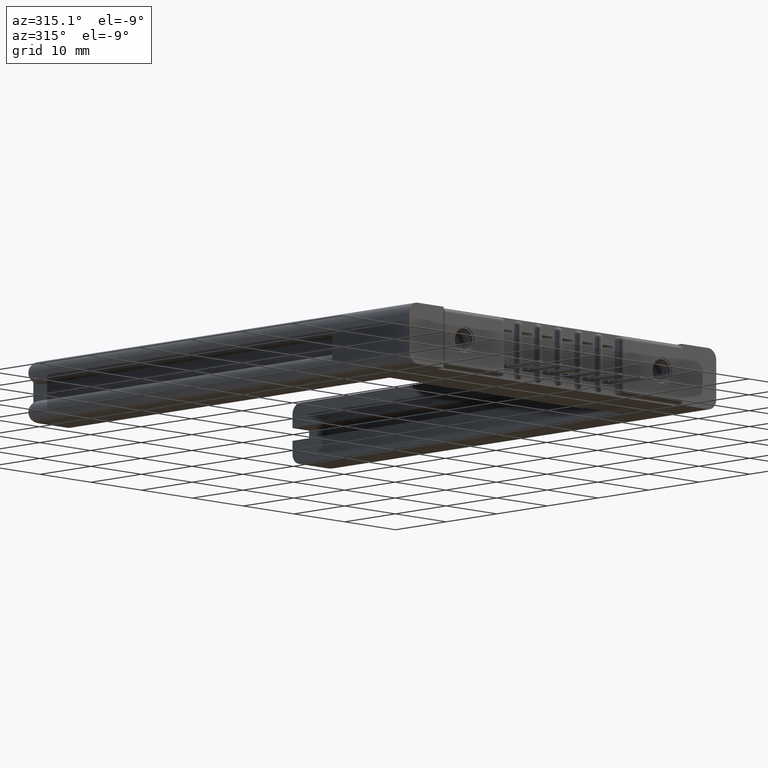
[diagram: clean part render]
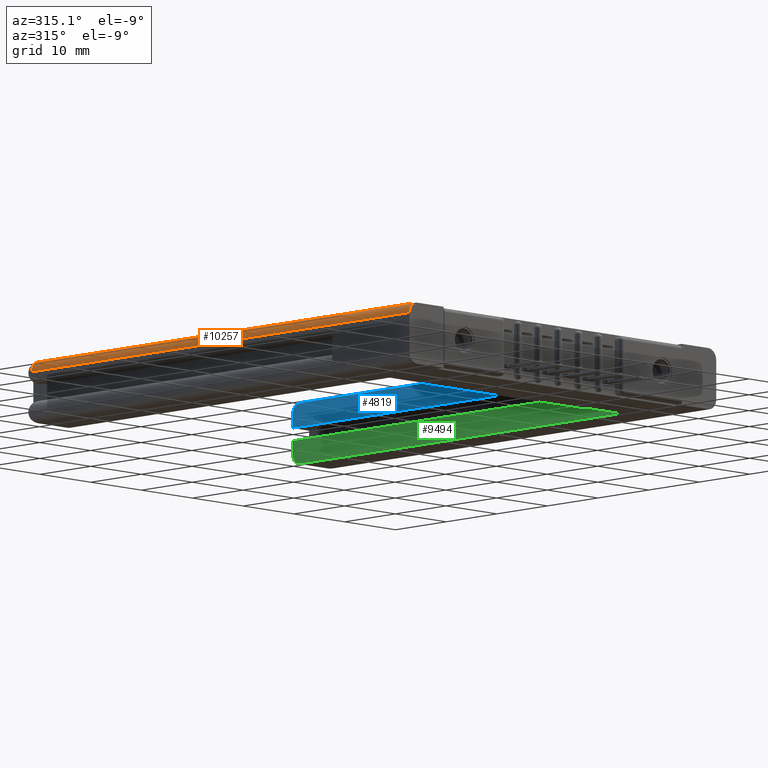
[diagram: same view with three faces highlighted in distinct colors, each labeled with its STEP entity id]
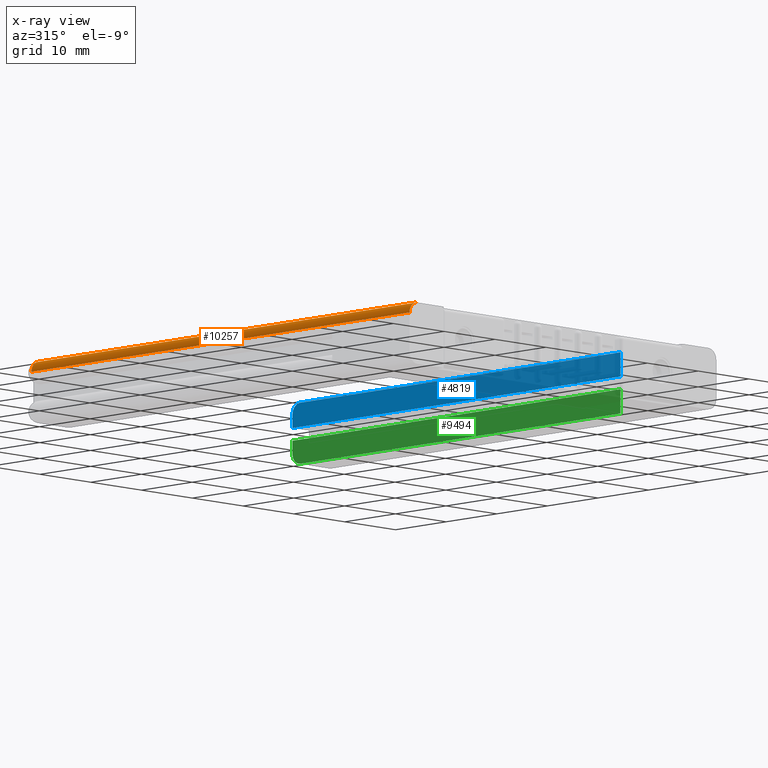
[diagram: x-ray of the same camera — body ghosted, the three highlighted faces saturated]
A machine part, auxiliary view with three faces highlighted in distinct colors.
The next image is the same camera in x-ray (body ghosted, the three faces saturated) — at least one of them is partly hidden behind the body in this view.
Their STEP definitions:

[orange] entity #10257 — the highlighted cylindrical surface (edge-blend (fillet) strip) has radius 1.5621 mm, axis along (0, 1, -0).
#352 = ORIENTED_EDGE ( 'NONE', *, *, #11031, .F. ) ;
#608 = DIRECTION ( 'NONE',  ( 0.0000000000000000000, -2.334284690065025200E-016, 1.000000000000000000 ) ) ;
#714 = DIRECTION ( 'NONE',  ( 0.0000000000000000000, 0.0000000000000000000, 1.000000000000000000 ) ) ;
#732 = ORIENTED_EDGE ( 'NONE', *, *, #4155, .F. ) ;
#795 = VECTOR ( 'NONE', #6135, 39.37007874015748100 ) ;
#1024 = LINE ( 'NONE', #11329, #7639 ) ;
#1482 = VERTEX_POINT ( 'NONE', #1958 ) ;
#1725 = DIRECTION ( 'NONE',  ( 7.120336040201873200E-016, 1.000000000000000000, -2.334284690065040000E-016 ) ) ;
#1732 = ORIENTED_EDGE ( 'NONE', *, *, #8716, .T. ) ;
#1958 = CARTESIAN_POINT ( 'NONE',  ( 2.032419574938677500E-006, 2.940000000000007100, -0.06149998347626495200 ) ) ;
#2444 = DIRECTION ( 'NONE',  ( 7.120336040201873200E-016, 1.000000000000000000, -2.334284690065040000E-016 ) ) ;
#2512 = CIRCLE ( 'NONE', #4119, 0.06150000000000035300 ) ;
#2971 = LINE ( 'NONE', #11797, #795 ) ;
#3154 = EDGE_LOOP ( 'NONE', ( #352, #5705, #1732, #11589, #732 ) ) ;
#3835 = CYLINDRICAL_SURFACE ( 'NONE', #5060, 0.06150000000000035300 ) ;
#4119 = AXIS2_PLACEMENT_3D ( 'NONE', #9264, #10298, #10254 ) ;
#4155 = EDGE_CURVE ( 'NONE', #4884, #10256, #2512, .T. ) ;
#4260 = EDGE_CURVE ( 'NONE', #6934, #1482, #8370, .T. ) ;
#4464 = CARTESIAN_POINT ( 'NONE',  ( 0.06150000000000370400, 2.940000000000007100, -0.06150000000000127600 ) ) ;
#4884 = VERTEX_POINT ( 'NONE', #5436 ) ;
#5060 = AXIS2_PLACEMENT_3D ( 'NONE', #9125, #2444, #608 ) ;
#5436 = CARTESIAN_POINT ( 'NONE',  ( 0.06149999999999987400, 4.161799677847901200E-017, 0.0000000000000000000 ) ) ;
#5666 = DIRECTION ( 'NONE',  ( -7.120336040201873200E-016, -1.000000000000000000, 2.334284690065040000E-016 ) ) ;
#5705 = ORIENTED_EDGE ( 'NONE', *, *, #4260, .T. ) ;
#6135 = DIRECTION ( 'NONE',  ( -7.120336040201873200E-016, -1.000000000000000000, 2.334284690065040000E-016 ) ) ;
#6934 = VERTEX_POINT ( 'NONE', #9310 ) ;
#7376 = EDGE_CURVE ( 'NONE', #10256, #11032, #11126, .T. ) ;
#7439 = CARTESIAN_POINT ( 'NONE',  ( 3.551402391763542400E-015, 3.000000000000006700, -0.06150000000000131100 ) ) ;
#7639 = VECTOR ( 'NONE', #5666, 39.37007874015748100 ) ;
#8165 = DIRECTION ( 'NONE',  ( -7.120336040201873200E-016, -1.000000000000000000, 2.334284690065040000E-016 ) ) ;
#8370 = CIRCLE ( 'NONE', #10455, 0.06150000000000035300 ) ;
#8716 = EDGE_CURVE ( 'NONE', #1482, #11032, #2971, .T. ) ;
#9041 = CARTESIAN_POINT ( 'NONE',  ( 0.0000000000000000000, 1.387266559282633700E-017, -0.06150000000000079700 ) ) ;
#9125 = CARTESIAN_POINT ( 'NONE',  ( 0.06150000000000015200, 6.936332796413168700E-017, -0.06150000000000045700 ) ) ;
#9264 = CARTESIAN_POINT ( 'NONE',  ( 0.06150000000000015200, 6.936332796413168700E-017, -0.06150000000000045700 ) ) ;
#9310 = CARTESIAN_POINT ( 'NONE',  ( 0.06150000000000342700, 2.940000000000007100, -8.878505979408856000E-016 ) ) ;
#9948 = VECTOR ( 'NONE', #1725, 39.37007874015748100 ) ;
#10254 = DIRECTION ( 'NONE',  ( 1.000000000000000000, 7.164262422741187300E-016, 0.0000000000000000000 ) ) ;
#10256 = VERTEX_POINT ( 'NONE', #9041 ) ;
#10257 = ADVANCED_FACE ( 'NONE', ( #11654 ), #3835, .T. ) ;
#10298 = DIRECTION ( 'NONE',  ( -7.076409657662517800E-016, -1.000000000000000000, 2.334284690065039500E-016 ) ) ;
#10455 = AXIS2_PLACEMENT_3D ( 'NONE', #4464, #8165, #714 ) ;
#11031 = EDGE_CURVE ( 'NONE', #6934, #4884, #1024, .T. ) ;
#11032 = VERTEX_POINT ( 'NONE', #11244 ) ;
#11126 = LINE ( 'NONE', #7439, #9948 ) ;
#11244 = CARTESIAN_POINT ( 'NONE',  ( 0.0000000000000000000, 0.5999999999999998700, -0.06150000000000042200 ) ) ;
#11329 = CARTESIAN_POINT ( 'NONE',  ( 0.06150000000000015200, 4.161799677847901200E-017, 0.0000000000000000000 ) ) ;
#11589 = ORIENTED_EDGE ( 'NONE', *, *, #7376, .F. ) ;
#11654 = FACE_OUTER_BOUND ( 'NONE', #3154, .T. ) ;
#11797 = CARTESIAN_POINT ( 'NONE',  ( 3.551402391763542400E-015, 3.000000000000006700, -0.06150000000000131100 ) ) ;

[blue] entity #4819 — the highlighted planar face has unit normal (-1, -0, -0).
#393 = DIRECTION ( 'NONE',  ( 4.510281037539688600E-017, -2.334284690065025700E-016, 1.000000000000000000 ) ) ;
#483 = EDGE_CURVE ( 'NONE', #6249, #6038, #10767, .T. ) ;
#628 = VERTEX_POINT ( 'NONE', #1575 ) ;
#655 = AXIS2_PLACEMENT_3D ( 'NONE', #5719, #7477, #4757 ) ;
#1171 = DIRECTION ( 'NONE',  ( 4.510281037539688600E-017, -2.334284690065025700E-016, 1.000000000000000000 ) ) ;
#1188 = DIRECTION ( 'NONE',  ( 5.915108984173514200E-016, 1.000000000000000000, -2.334284690065039000E-016 ) ) ;
#1304 = VECTOR ( 'NONE', #393, 39.37007874015748100 ) ;
#1432 = ORIENTED_EDGE ( 'NONE', *, *, #5169, .F. ) ;
#1575 = CARTESIAN_POINT ( 'NONE',  ( 0.2950000000000062600, 0.4500000000000002300, -0.3400000000000031900 ) ) ;
#1671 = EDGE_LOOP ( 'NONE', ( #11082, #2195, #8336, #3583, #1432 ) ) ;
#1914 = AXIS2_PLACEMENT_3D ( 'NONE', #5930, #3164, #5020 ) ;
#2195 = ORIENTED_EDGE ( 'NONE', *, *, #3047, .T. ) ;
#2375 = CARTESIAN_POINT ( 'NONE',  ( 0.2950000000000062600, 0.4500000000000001200, -0.2055000000000009300 ) ) ;
#3047 = EDGE_CURVE ( 'NONE', #10706, #6095, #10413, .T. ) ;
#3068 = FACE_OUTER_BOUND ( 'NONE', #1671, .T. ) ;
#3164 = DIRECTION ( 'NONE',  ( 1.000000000000000000, -5.915108984173514200E-016, 4.510281037539700900E-017 ) ) ;
#3583 = ORIENTED_EDGE ( 'NONE', *, *, #483, .F. ) ;
#3784 = LINE ( 'NONE', #5091, #1304 ) ;
#4258 = VECTOR ( 'NONE', #1188, 39.37007874015748100 ) ;
#4534 = VECTOR ( 'NONE', #10302, 39.37007874015748100 ) ;
#4757 = DIRECTION ( 'NONE',  ( 5.691349986800556800E-016, 1.000000000000000000, 0.0000000000000000000 ) ) ;
#4819 = ADVANCED_FACE ( 'NONE', ( #3068 ), #9820, .T. ) ;
#5020 = DIRECTION ( 'NONE',  ( 5.915108984173514200E-016, 1.000000000000000000, -2.334284690065039000E-016 ) ) ;
#5091 = CARTESIAN_POINT ( 'NONE',  ( 0.2950000000000065300, 3.000000000000006700, -0.3400000000000031900 ) ) ;
#5169 = EDGE_CURVE ( 'NONE', #628, #6249, #5572, .T. ) ;
#5572 = LINE ( 'NONE', #11575, #8212 ) ;
#5719 = CARTESIAN_POINT ( 'NONE',  ( 0.2950000000000065300, 2.940000000000007100, -0.2800000000000026400 ) ) ;
#5901 = EDGE_CURVE ( 'NONE', #6095, #6038, #3784, .T. ) ;
#5930 = CARTESIAN_POINT ( 'NONE',  ( 0.2950000000000065300, 3.000000000000006700, -0.3400000000000031900 ) ) ;
#6038 = VERTEX_POINT ( 'NONE', #11800 ) ;
#6095 = VERTEX_POINT ( 'NONE', #7860 ) ;
#6152 = LINE ( 'NONE', #8326, #4534 ) ;
#6249 = VERTEX_POINT ( 'NONE', #2375 ) ;
#6795 = CARTESIAN_POINT ( 'NONE',  ( 0.2950000000000062600, 0.4500000000000001200, -0.2055000000000009300 ) ) ;
#7477 = DIRECTION ( 'NONE',  ( 1.000000000000000000, 8.325563096230176100E-016, 4.510281037539667600E-017 ) ) ;
#7860 = CARTESIAN_POINT ( 'NONE',  ( 0.2950000000000065300, 3.000000000000006700, -0.2800000000000026400 ) ) ;
#8212 = VECTOR ( 'NONE', #1171, 39.37007874015748100 ) ;
#8326 = CARTESIAN_POINT ( 'NONE',  ( 0.2950000000000065300, 3.000000000000006700, -0.3400000000000031900 ) ) ;
#8336 = ORIENTED_EDGE ( 'NONE', *, *, #5901, .T. ) ;
#8548 = CARTESIAN_POINT ( 'NONE',  ( 0.2950000000000065300, 2.940000000000007100, -0.3400000000000031900 ) ) ;
#9820 = PLANE ( 'NONE',  #1914 ) ;
#10302 = DIRECTION ( 'NONE',  ( 5.915108984173514200E-016, 1.000000000000000000, -2.334284690065039000E-016 ) ) ;
#10413 = CIRCLE ( 'NONE', #655, 0.05999999999999990800 ) ;
#10706 = VERTEX_POINT ( 'NONE', #8548 ) ;
#10767 = LINE ( 'NONE', #6795, #4258 ) ;
#11029 = EDGE_CURVE ( 'NONE', #628, #10706, #6152, .T. ) ;
#11082 = ORIENTED_EDGE ( 'NONE', *, *, #11029, .T. ) ;
#11575 = CARTESIAN_POINT ( 'NONE',  ( 0.2950000000000062600, 0.4500000000000002300, -0.3400000000000031900 ) ) ;
#11800 = CARTESIAN_POINT ( 'NONE',  ( 0.2950000000000065300, 3.000000000000006700, -0.2055000000000018200 ) ) ;

[green] entity #9494 — the highlighted planar face has unit normal (-1, -0, -0).
#599 = EDGE_CURVE ( 'NONE', #8614, #9438, #2192, .T. ) ;
#766 = DIRECTION ( 'NONE',  ( 1.000000000000000000, 8.325563096230176100E-016, 4.510281037539667600E-017 ) ) ;
#872 = EDGE_LOOP ( 'NONE', ( #3871, #6660, #5339, #5924, #6037 ) ) ;
#1282 = PLANE ( 'NONE',  #7418 ) ;
#1367 = VERTEX_POINT ( 'NONE', #2554 ) ;
#1579 = DIRECTION ( 'NONE',  ( 4.510281037539688600E-017, -2.334284690065025700E-016, 1.000000000000000000 ) ) ;
#1607 = DIRECTION ( 'NONE',  ( 5.691349986800556800E-016, 1.000000000000000000, -2.845674993400278400E-016 ) ) ;
#1739 = VECTOR ( 'NONE', #4366, 39.37007874015748100 ) ;
#2153 = CARTESIAN_POINT ( 'NONE',  ( 0.2950000000000065300, 3.000000000000006700, -0.06000000000000130900 ) ) ;
#2192 = LINE ( 'NONE', #6057, #1739 ) ;
#2554 = CARTESIAN_POINT ( 'NONE',  ( 0.2950000000000032600, 0.4500000000000002300, -0.1345000000000017000 ) ) ;
#3196 = DIRECTION ( 'NONE',  ( -5.915108984173514200E-016, -1.000000000000000000, 2.334284690065039000E-016 ) ) ;
#3475 = EDGE_CURVE ( 'NONE', #10733, #9438, #6936, .T. ) ;
#3871 = ORIENTED_EDGE ( 'NONE', *, *, #8642, .T. ) ;
#4023 = EDGE_CURVE ( 'NONE', #1367, #8614, #11208, .T. ) ;
#4277 = CARTESIAN_POINT ( 'NONE',  ( 0.2950000000000062600, 0.4500000000000002300, -0.3400000000000031900 ) ) ;
#4366 = DIRECTION ( 'NONE',  ( 5.915108984173514200E-016, 1.000000000000000000, -2.334284690065039000E-016 ) ) ;
#5282 = CARTESIAN_POINT ( 'NONE',  ( 0.2950000000000065300, 3.000000000000006700, -0.1345000000000018100 ) ) ;
#5322 = EDGE_CURVE ( 'NONE', #5926, #1367, #7908, .T. ) ;
#5339 = ORIENTED_EDGE ( 'NONE', *, *, #599, .F. ) ;
#5358 = CARTESIAN_POINT ( 'NONE',  ( 0.2950000000000065300, 3.000000000000006700, -0.3400000000000031900 ) ) ;
#5924 = ORIENTED_EDGE ( 'NONE', *, *, #4023, .F. ) ;
#5926 = VERTEX_POINT ( 'NONE', #5282 ) ;
#6037 = ORIENTED_EDGE ( 'NONE', *, *, #5322, .F. ) ;
#6057 = CARTESIAN_POINT ( 'NONE',  ( 0.2950000000000065300, 3.000000000000006700, -8.878505979408856000E-016 ) ) ;
#6660 = ORIENTED_EDGE ( 'NONE', *, *, #3475, .T. ) ;
#6810 = DIRECTION ( 'NONE',  ( 1.000000000000000000, -5.915108984173514200E-016, 4.510281037539700900E-017 ) ) ;
#6936 = CIRCLE ( 'NONE', #10983, 0.05999999999999990800 ) ;
#7418 = AXIS2_PLACEMENT_3D ( 'NONE', #8829, #6810, #11607 ) ;
#7510 = CARTESIAN_POINT ( 'NONE',  ( 0.2950000000000065300, 2.940000000000007100, -8.878505979408856000E-016 ) ) ;
#7908 = LINE ( 'NONE', #8001, #8632 ) ;
#8001 = CARTESIAN_POINT ( 'NONE',  ( 0.2950000000000032600, 0.4500000000000001200, -0.1345000000000017000 ) ) ;
#8130 = LINE ( 'NONE', #5358, #8560 ) ;
#8560 = VECTOR ( 'NONE', #1579, 39.37007874015748100 ) ;
#8614 = VERTEX_POINT ( 'NONE', #11892 ) ;
#8632 = VECTOR ( 'NONE', #3196, 39.37007874015748100 ) ;
#8642 = EDGE_CURVE ( 'NONE', #5926, #10733, #8130, .T. ) ;
#8829 = CARTESIAN_POINT ( 'NONE',  ( 0.2950000000000065300, 3.000000000000006700, -0.3400000000000031900 ) ) ;
#8986 = FACE_OUTER_BOUND ( 'NONE', #872, .T. ) ;
#9438 = VERTEX_POINT ( 'NONE', #7510 ) ;
#9494 = ADVANCED_FACE ( 'NONE', ( #8986 ), #1282, .T. ) ;
#9566 = VECTOR ( 'NONE', #10918, 39.37007874015748100 ) ;
#10103 = CARTESIAN_POINT ( 'NONE',  ( 0.2950000000000065300, 2.940000000000007100, -0.06000000000000130900 ) ) ;
#10733 = VERTEX_POINT ( 'NONE', #2153 ) ;
#10918 = DIRECTION ( 'NONE',  ( 4.510281037539688600E-017, -2.334284690065025700E-016, 1.000000000000000000 ) ) ;
#10983 = AXIS2_PLACEMENT_3D ( 'NONE', #10103, #766, #1607 ) ;
#11208 = LINE ( 'NONE', #4277, #9566 ) ;
#11607 = DIRECTION ( 'NONE',  ( 5.915108984173514200E-016, 1.000000000000000000, -2.334284690065039000E-016 ) ) ;
#11892 = CARTESIAN_POINT ( 'NONE',  ( 0.2950000000000032600, 0.4500000000000002300, -8.878505979408856000E-016 ) ) ;